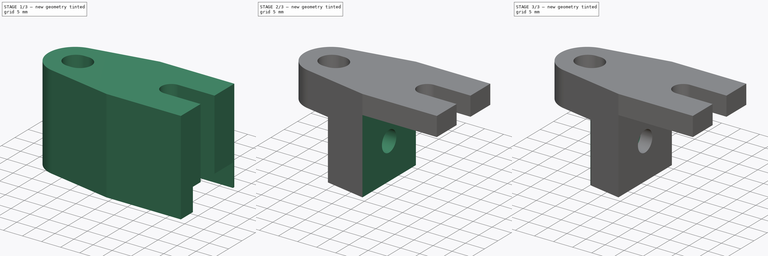
[diagram: build sequence overview — one tinted view per stage of 3, left to right]
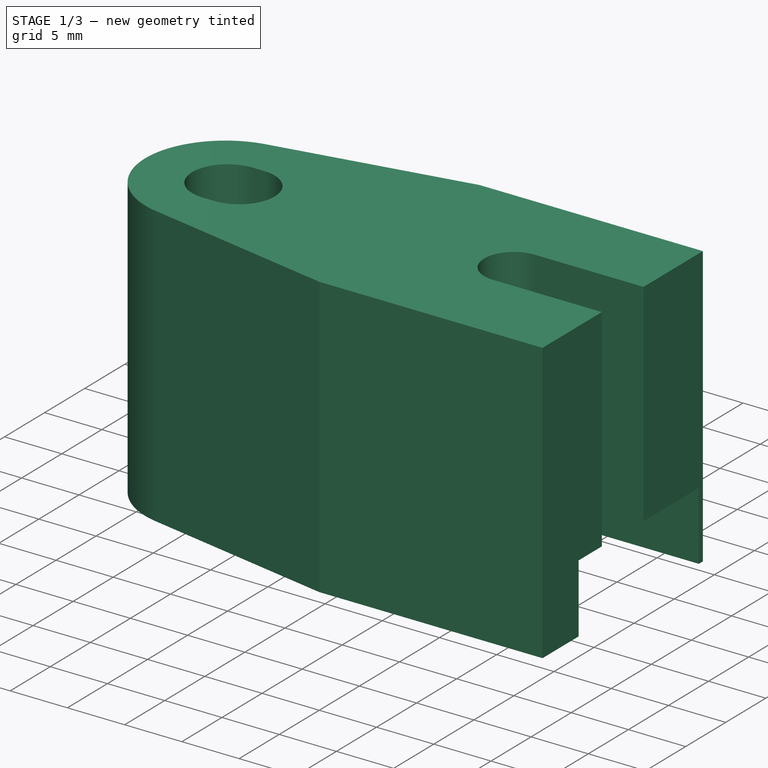
[diagram: stage 1 of 3 — iso view after this stage's code; geometry added in this stage tinted green]
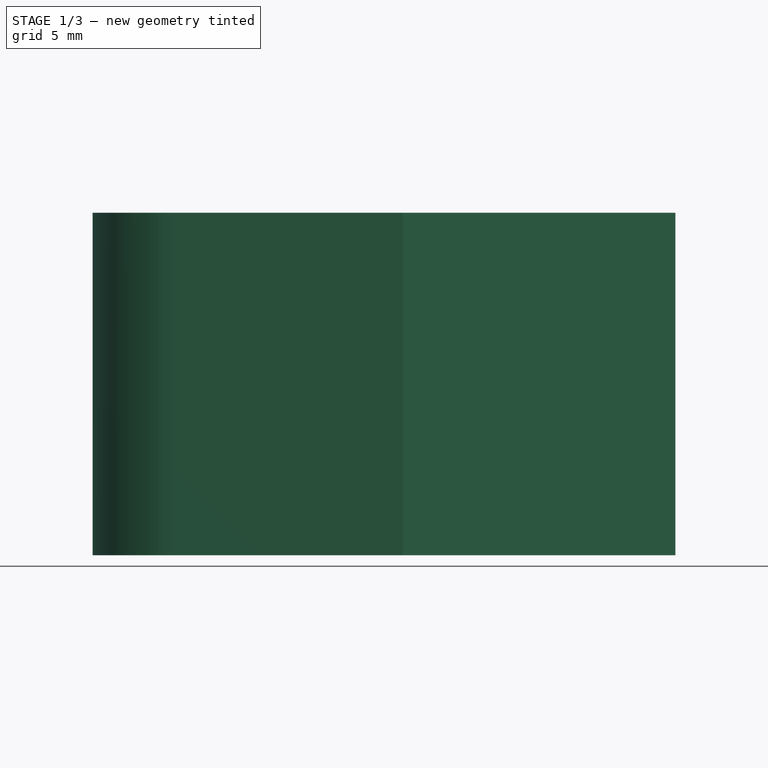
[diagram: stage 1 of 3 — front view after this stage's code; geometry added in this stage tinted green]
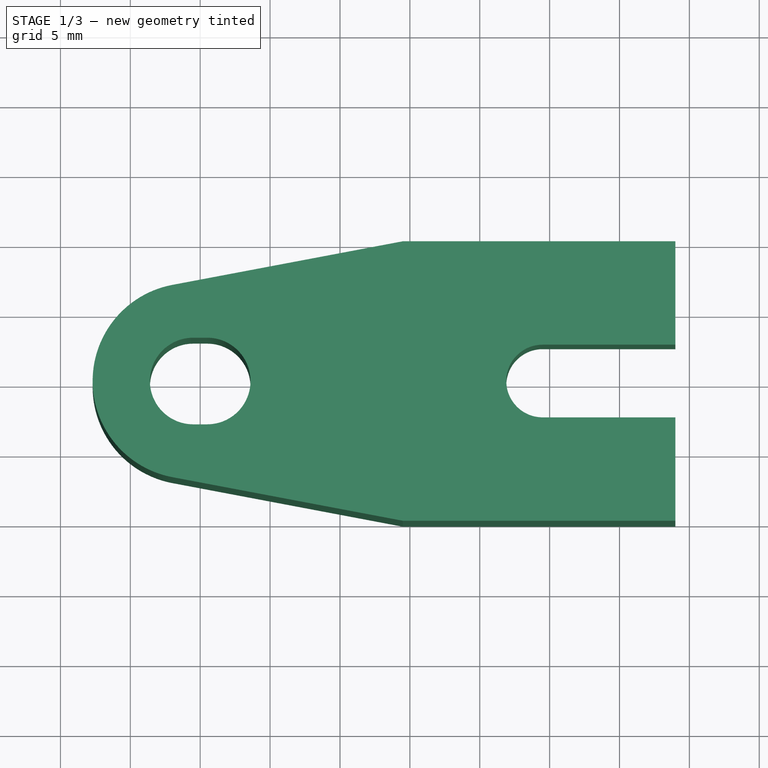
[diagram: stage 1 of 3 — top view after this stage's code; geometry added in this stage tinted green]
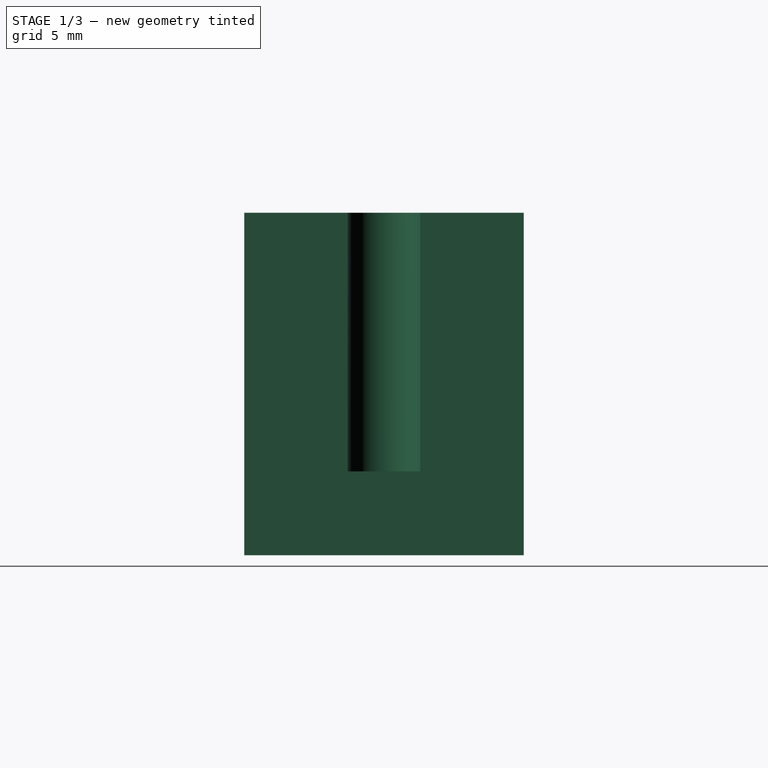
[diagram: stage 1 of 3 — right view after this stage's code; geometry added in this stage tinted green]
FCSTD DOCUMENT  (FreeCAD 0.17R13519 (Git))
Label: Corelia_0_bed_holder
License: All rights reserved
LicenseURL: http://en.wikipedia.org/wiki/All_rights_reserved
objects: Sketcher::SketchObject×5, PartDesign::Pocket×4, PartDesign::Pad×1, PartDesign::Chamfer×1, PartDesign::Fillet×1, PartDesign::Body×1
note: 18 computed .brp shape members not serialized (recipe doc carries the construction recipe); baked Part::Feature solids carry a one-line shape summary decoded from their .brp

FEATURE [Sketcher::SketchObject] Sketch
  MapMode = 5
  Support = -> [XY_Plane]
  sketch-geometry (14):
    g0: LineSegment StartX=-2 StartY=6.87796 StartZ=0 EndX=14.5 EndY=10 EndZ=0
    g1: LineSegment StartX=14.5 StartY=10 StartZ=0 EndX=34 EndY=10 EndZ=0
    g2: LineSegment StartX=34 StartY=10 StartZ=0 EndX=34 EndY=2.6 EndZ=0
    g3: LineSegment StartX=34 StartY=-10 StartZ=0 EndX=14.5 EndY=-10 EndZ=0
    g4: LineSegment StartX=14.5 StartY=-10 StartZ=0 EndX=-2 EndY=-6.87796 EndZ=0
    g5: LineSegment StartX=24.5 StartY=2.6 StartZ=0 EndX=34 EndY=2.6 EndZ=0
    g6: LineSegment StartX=24.5 StartY=-2.6 StartZ=0 EndX=34 EndY=-2.6 EndZ=0
    g7: LineSegment StartX=34 StartY=-2.6 StartZ=0 EndX=34 EndY=-10 EndZ=0
    g8: ArcOfCircle CenterX=-0.69859 CenterY=0 CenterZ=0 NormalX=0 NormalY=0 NormalZ=1 AngleXU=0 Radius=7 StartAngle=1.7578 EndAngle=4.52539
    g9: ArcOfCircle CenterX=24.5 CenterY=0 CenterZ=0 NormalX=0 NormalY=0 NormalZ=1 AngleXU=0 Radius=2.6 StartAngle=1.5708 EndAngle=4.71239
    g10: ArcOfCircle CenterX=-0.5 CenterY=0 CenterZ=0 NormalX=0 NormalY=0 NormalZ=1 AngleXU=0 Radius=3.1 StartAngle=1.5708 EndAngle=4.71239
    g11: ArcOfCircle CenterX=0.5 CenterY=0 CenterZ=0 NormalX=0 NormalY=0 NormalZ=1 AngleXU=0 Radius=3.1 StartAngle=4.71239 EndAngle=7.85398
    g12: LineSegment StartX=-0.5 StartY=-3.1 StartZ=0 EndX=0.5 EndY=-3.1 EndZ=0
    g13: LineSegment StartX=-0.5 StartY=3.1 StartZ=0 EndX=0.5 EndY=3.1 EndZ=0
  constraints (38):
    c: Radius(g8) = 7
    c: DistanceY(g1) = 10
    c: Equal(g2,g7)
    c: Equal(g1,g3)
    c: Equal(g4,g0)
    c: Equal(g5,g6)
    c: Horizontal(g5)
    c: Horizontal(g1)
    c: Horizontal(g3)
    c: Vertical(g2)
    c: Vertical(g7)
    c: Horizontal(g6)
    c: Coincident(g2,g5)
    c: DistanceX(g5,g5) = 9.5
    c: DistanceY(g6,g2) = 5.2
    c: Coincident(g6,g7)
    c: Coincident(g7,g3)
    c: Coincident(g4,g3)
    c: Coincident(g0,g1)
    c: Coincident(g1,g2)
    c: PointOnObject(g9,g-1)
    c: Tangent(g8,g0) = 1.5708
    c: Tangent(g5,g9) = 1.5708
    c: Tangent(g6,g9) = -1.5708
    c: DistanceX(g1,g1) = 19.5
    c: Tangent(g4,g8) = 1.5708
    c: DistanceX(g0,g0) = 16.5
    c: DistanceX(g9) = 24.5
    c: Tangent(g10,g13) = 1.5708
    c: Tangent(g10,g12) = -1.5708
    c: Tangent(g12,g11) = -1.5708
    c: Tangent(g13,g11) = 1.5708
    c: Horizontal(g12)
    c: Equal(g10,g11)
    c: DistanceX(g13,g13) = 1
    c: DistanceX(g11,g9) = 24
    c: Radius(g11) = 3.1
    c: PointOnObject(g11,g-1)
FEATURE [PartDesign::Pad] Pad
  Length = 24.5
  Length2 = 100
  Profile = -> Sketch
  Type = 0
FEATURE [Sketcher::SketchObject] Sketch001
  MapMode = 5
  Placement = pos=(34,0,0) rot=(0.57735,0.57735,0.57735;2.0944rad)
  Support = -> [Pad]
  sketch-geometry (4):
    g0: LineSegment StartX=-5.5 StartY=6 StartZ=0 EndX=9.5 EndY=6 EndZ=0
    g1: LineSegment StartX=9.5 StartY=6 StartZ=0 EndX=9.5 EndY=-6 EndZ=0
    g2: LineSegment StartX=9.5 StartY=-6 StartZ=0 EndX=-5.5 EndY=-6 EndZ=0
    g3: LineSegment StartX=-5.5 StartY=-6 StartZ=0 EndX=-5.5 EndY=6 EndZ=0
  constraints (12):
    c: Coincident(g0,g1)
    c: Coincident(g1,g2)
    c: Coincident(g2,g3)
    c: Coincident(g3,g0)
    c: Horizontal(g0)
    c: Horizontal(g2)
    c: Vertical(g1)
    c: Vertical(g3)
    c: Symmetric(g0,g2,g-1)
    c: DistanceY(g3,g3) = 12
    c: DistanceX(g0,g0) = 15
    c: DistanceX(g1) = 9.5
FEATURE [PartDesign::Pocket] Pocket
  BaseFeature = -> Pad
  Length = 14.5
  Length2 = 100
  Profile = -> Sketch001
  Type = 0
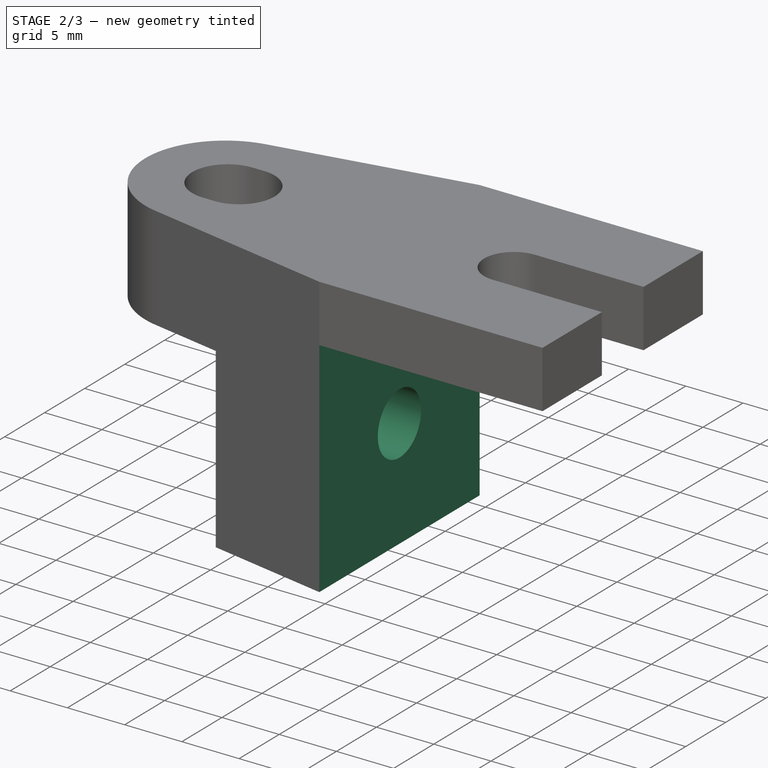
[diagram: stage 2 of 3 — iso view after this stage's code; geometry added in this stage tinted green]
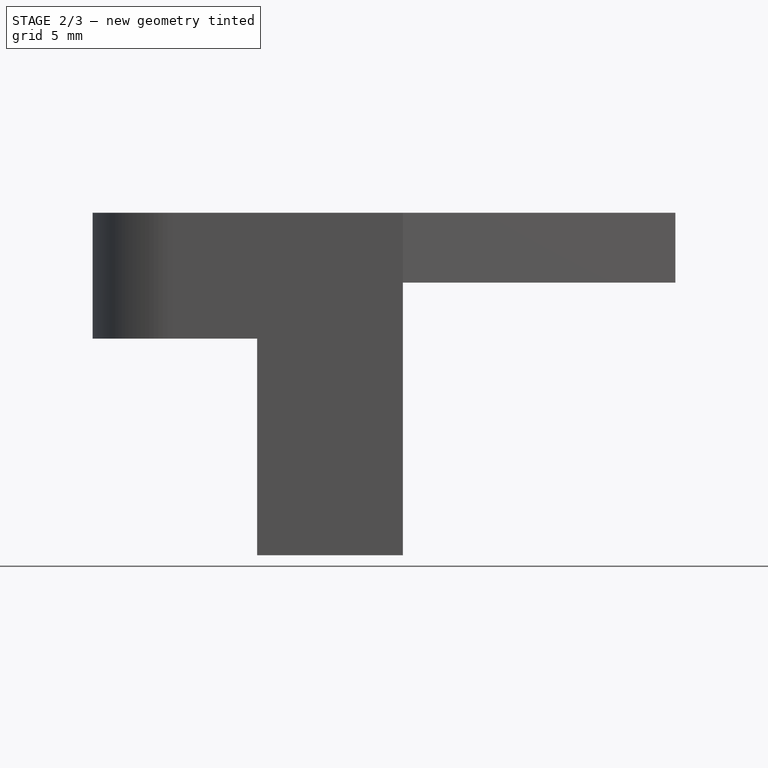
[diagram: stage 2 of 3 — front view after this stage's code; geometry added in this stage tinted green]
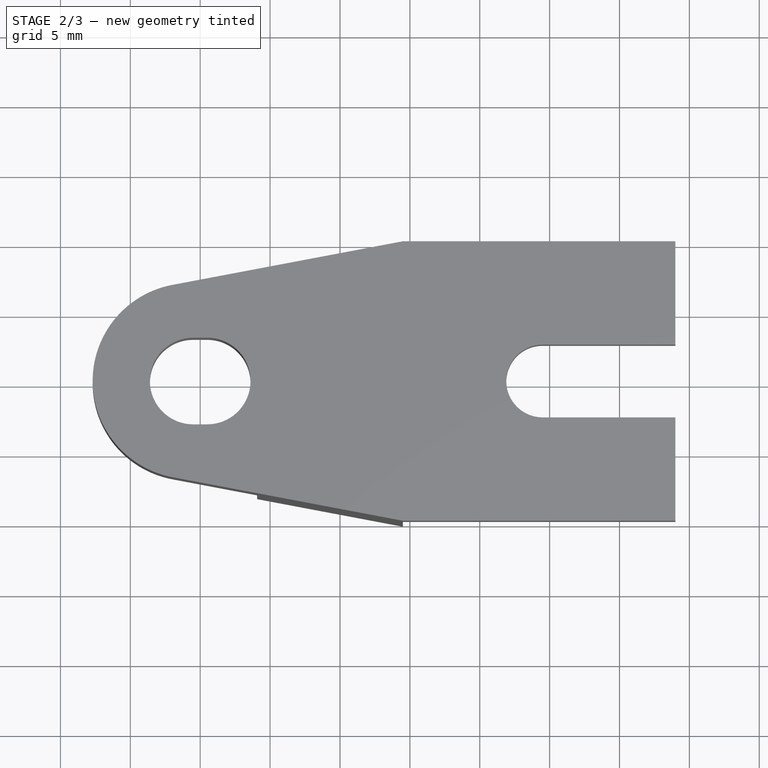
[diagram: stage 2 of 3 — top view after this stage's code; geometry added in this stage tinted green]
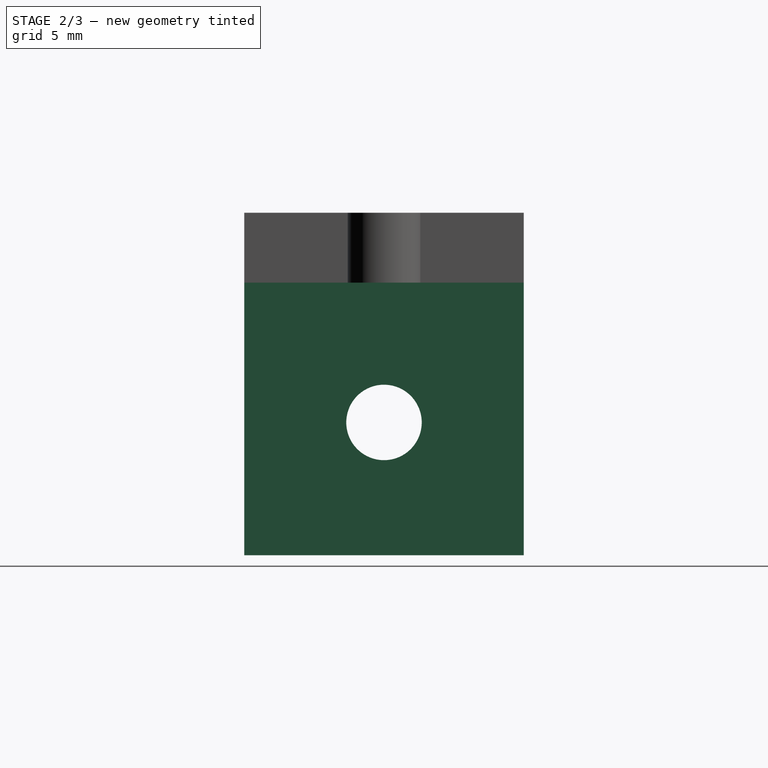
[diagram: stage 2 of 3 — right view after this stage's code; geometry added in this stage tinted green]
FEATURE [Sketcher::SketchObject] Sketch002
  MapMode = 5
  Placement = pos=(0,0,0) rot=(1,0,0;3.14159rad)
  Support = -> [Pocket]
  sketch-geometry (4):
    g0: LineSegment StartX=14.5 StartY=10 StartZ=0 EndX=34.5 EndY=10 EndZ=0
    g1: LineSegment StartX=34.5 StartY=10 StartZ=0 EndX=34.5 EndY=-10 EndZ=0
    g2: LineSegment StartX=34.5 StartY=-10 StartZ=0 EndX=14.5 EndY=-10 EndZ=0
    g3: LineSegment StartX=14.5 StartY=-10 StartZ=0 EndX=14.5 EndY=10 EndZ=0
  constraints (12):
    c: Coincident(g0,g1)
    c: Coincident(g1,g2)
    c: Coincident(g2,g3)
    c: Coincident(g3,g0)
    c: Horizontal(g0)
    c: Horizontal(g2)
    c: Vertical(g1)
    c: Vertical(g3)
    c: Symmetric(g0,g2,g-1)
    c: DistanceY(g1,g1) = 20
    c: DistanceX(g0) = 14.5
    c: DistanceX(g0,g0) = 20
FEATURE [PartDesign::Pocket] Pocket001
  BaseFeature = -> Pocket
  Length = 19.5
  Length2 = 100
  Profile = -> Sketch002
  Type = 0
FEATURE [Sketcher::SketchObject] Sketch003
  MapMode = 5
  Placement = pos=(14.5,0,0) rot=(0.57735,0.57735,0.57735;2.0944rad)
  Support = -> [Pocket001]
  sketch-geometry (1):
    g0: Circle CenterX=0 CenterY=9.5 CenterZ=0 NormalX=0 NormalY=0 NormalZ=1 AngleXU=0 Radius=2.7
  constraints (3):
    c: PointOnObject(g0,g-2)
    c: DistanceY(g0) = 9.5
    c: Radius(g0) = 2.7
FEATURE [PartDesign::Pocket] Pocket002
  BaseFeature = -> Pocket001
  Length = 5
  Length2 = 100
  Profile = -> Sketch003
  Type = 1
FEATURE [Sketcher::SketchObject] Sketch004
  MapMode = 5
  Placement = pos=(0,0,0) rot=(1,0,0;3.14159rad)
  Support = -> [Pocket002]
  sketch-geometry (4):
    g0: ArcOfCircle CenterX=0 CenterY=0 CenterZ=0 NormalX=0 NormalY=0 NormalZ=1 AngleXU=0 Radius=9 StartAngle=0.616003 EndAngle=5.66718
    g1: LineSegment StartX=7.34575 StartY=5.2 StartZ=0 EndX=9 EndY=5.2 EndZ=0
    g2: LineSegment StartX=9 StartY=5.2 StartZ=0 EndX=9 EndY=-5.2 EndZ=0
    g3: LineSegment StartX=9 StartY=-5.2 StartZ=0 EndX=7.34575 EndY=-5.2 EndZ=0
  constraints (12):
    c: Coincident(g0,g-1)
    c: Radius(g0) = 9
    c: Coincident(g1,g2)
    c: Coincident(g2,g3)
    c: Horizontal(g1)
    c: Horizontal(g3)
    c: Vertical(g2)
    c: DistanceY(g2,g2) = 10.4
    c: DistanceX(g2) = 9
    c: DistanceY(g2) = -5.2
    c: Coincident(g0,g1)
    c: Coincident(g0,g3)
FEATURE [PartDesign::Pocket] Pocket003
  BaseFeature = -> Pocket002
  Length = 15.5
  Length2 = 100
  Profile = -> Sketch004
  Type = 0
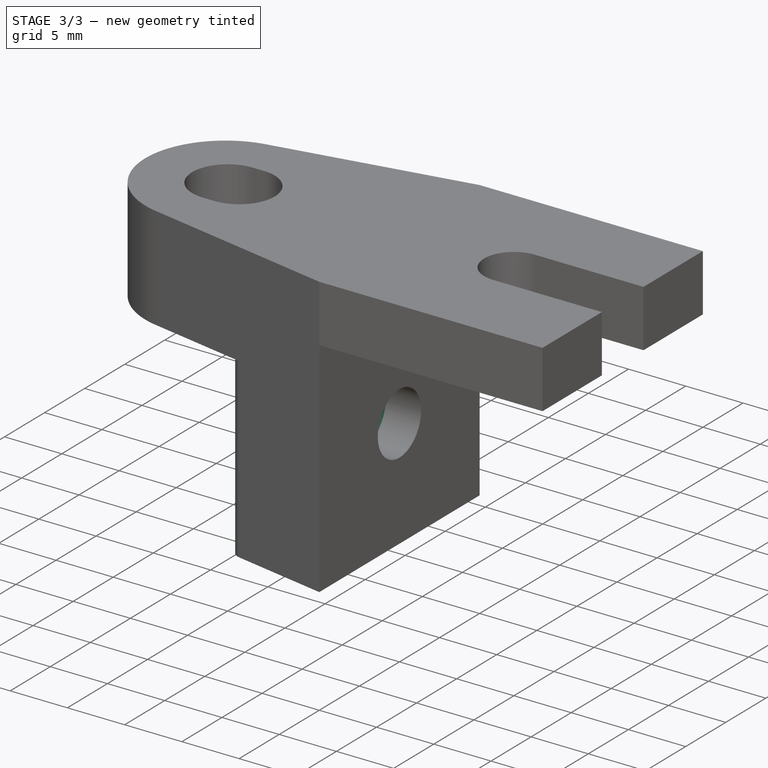
[diagram: stage 3 of 3 — iso view after this stage's code; geometry added in this stage tinted green]
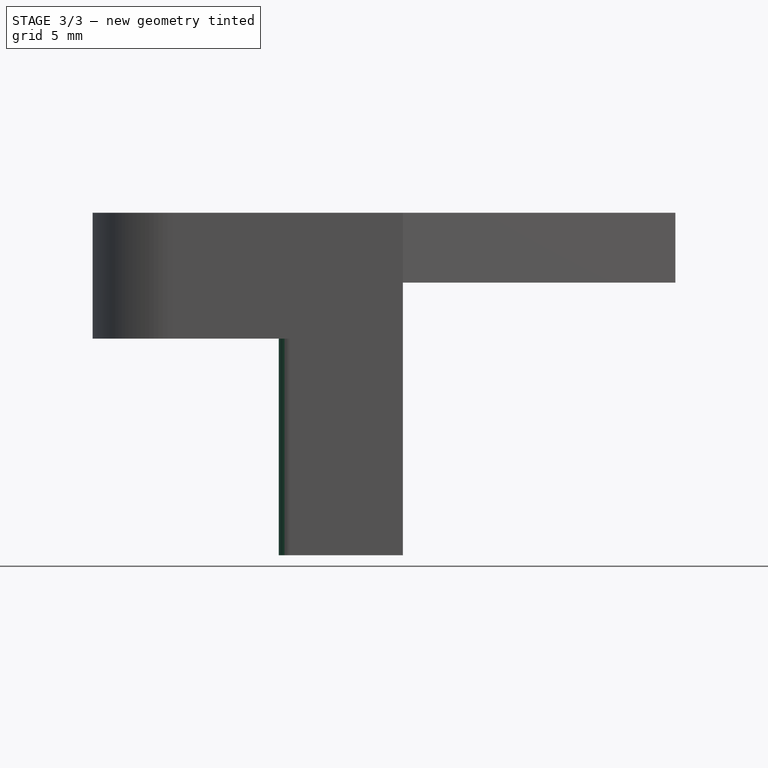
[diagram: stage 3 of 3 — front view after this stage's code; geometry added in this stage tinted green]
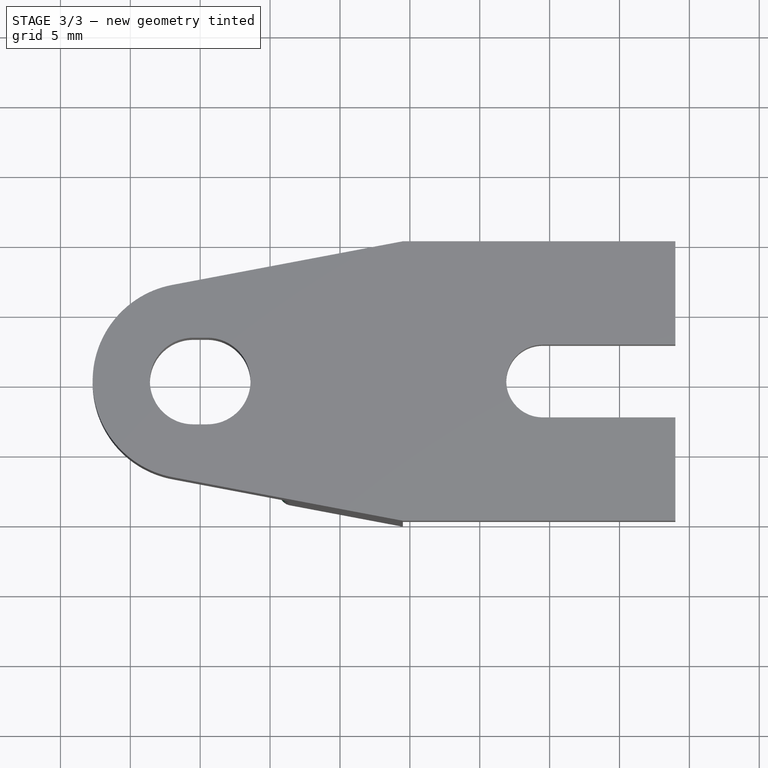
[diagram: stage 3 of 3 — top view after this stage's code; geometry added in this stage tinted green]
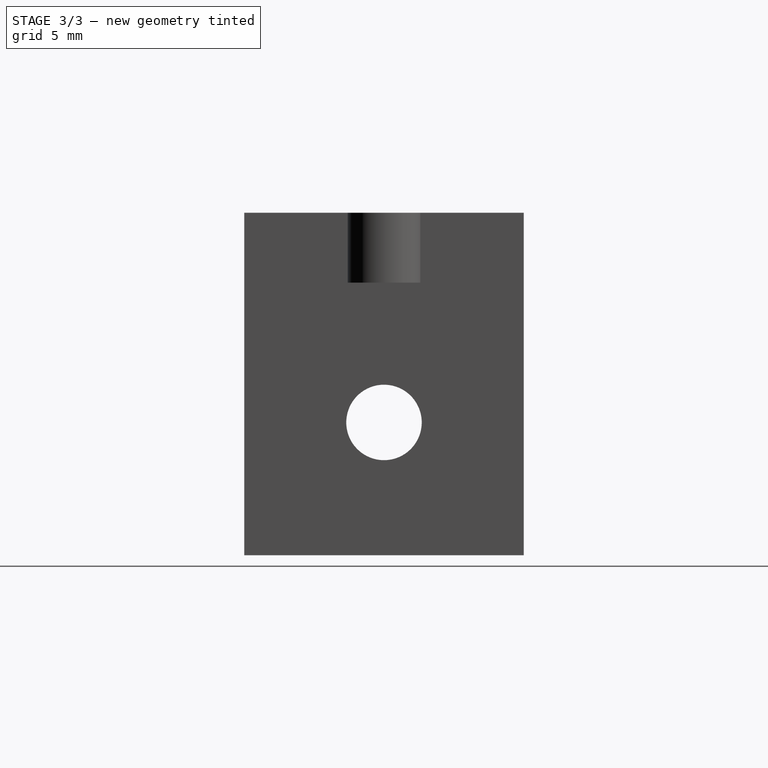
[diagram: stage 3 of 3 — right view after this stage's code; geometry added in this stage tinted green]
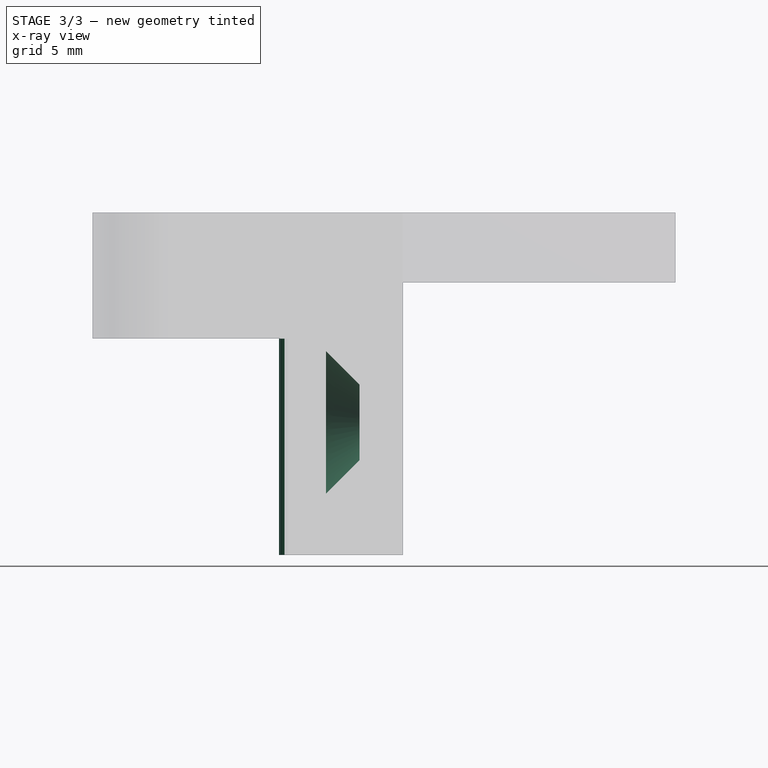
[diagram: stage 3 of 3 — x-ray composite at the front view; earlier geometry ghosted, this stage's added geometry solid]
FEATURE [PartDesign::Chamfer] Chamfer
  Base = -> Pocket003 [Edge49]
  BaseFeature = -> Pocket003
  Size = 2.4
FEATURE [PartDesign::Fillet] Fillet
  Base = -> Chamfer [Edge31,Edge27,Edge8,Edge30]
  BaseFeature = -> Chamfer
  Radius = 1
FEATURE [PartDesign::Body] Body
  Group = -> [Sketch,Pad,Sketch001,Pocket,Sketch002,Pocket001,Sketch003,Pocket002,Sketch004,Pocket003,Chamfer,Fillet]
  Origin = -> Origin
  Tip = -> Fillet
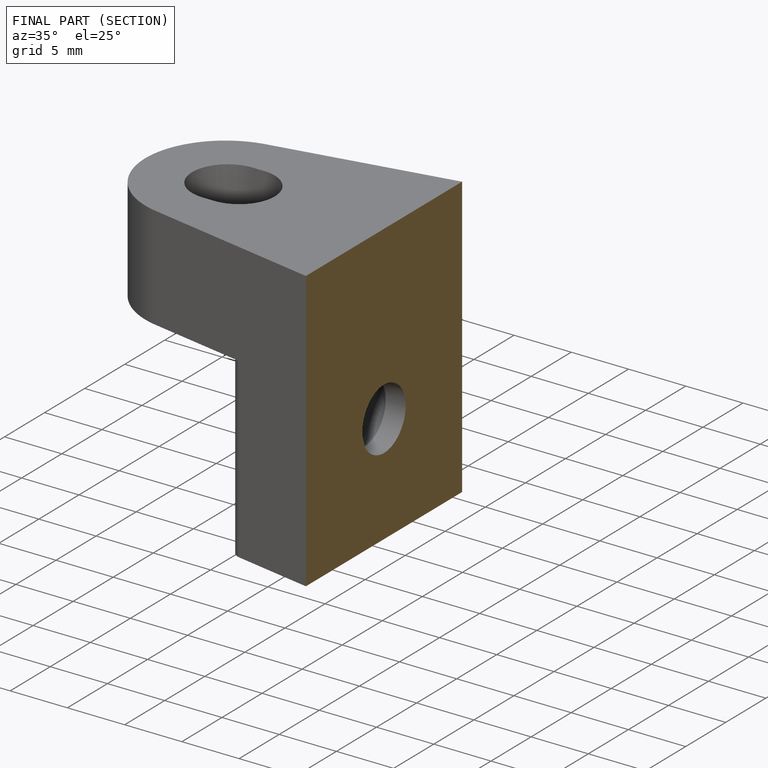
[diagram: finished part — half-section view (interior)]
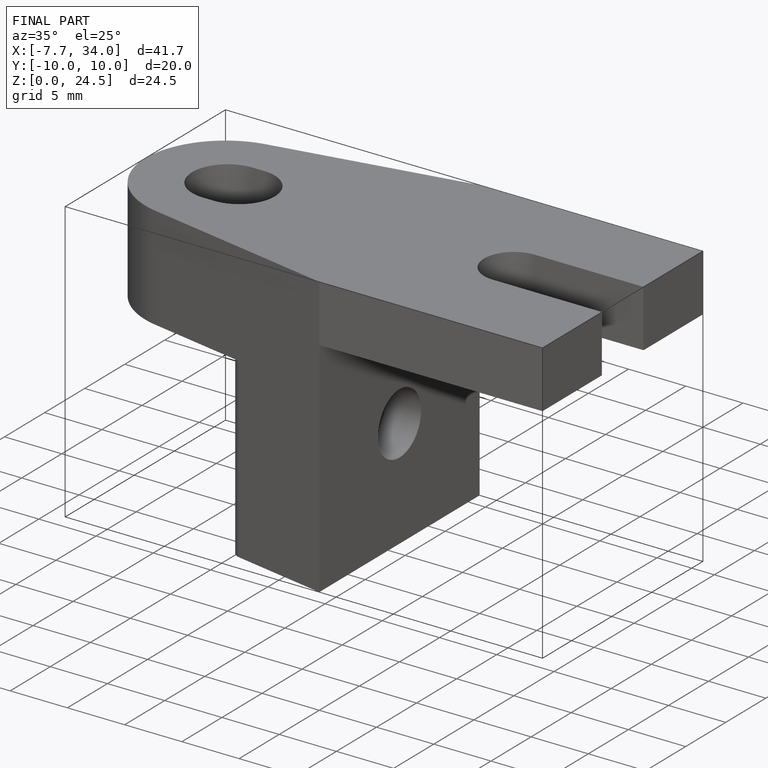
[diagram: finished part — iso view with bounding-box wireframe]
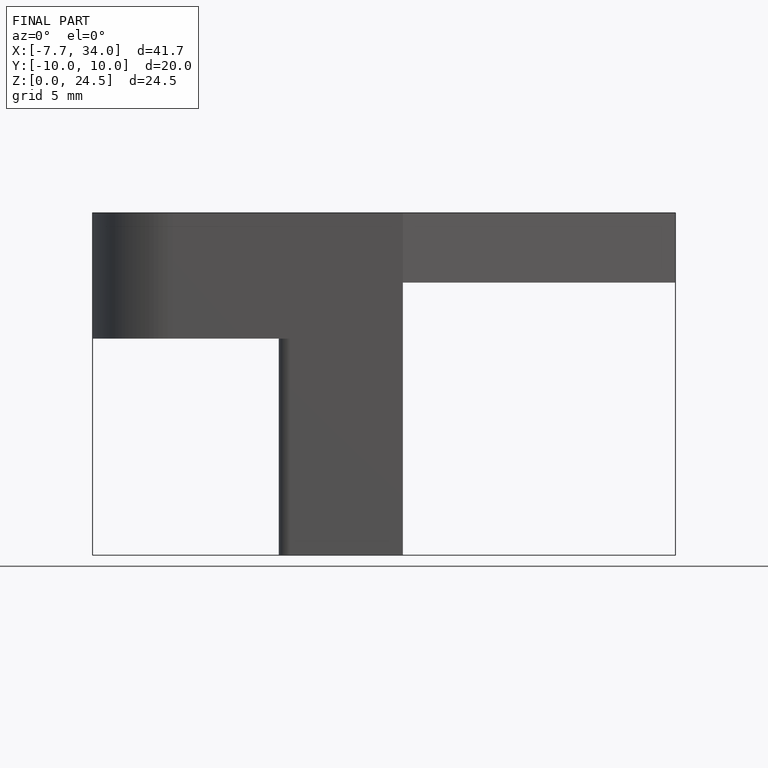
[diagram: finished part — front view with bounding-box wireframe]
